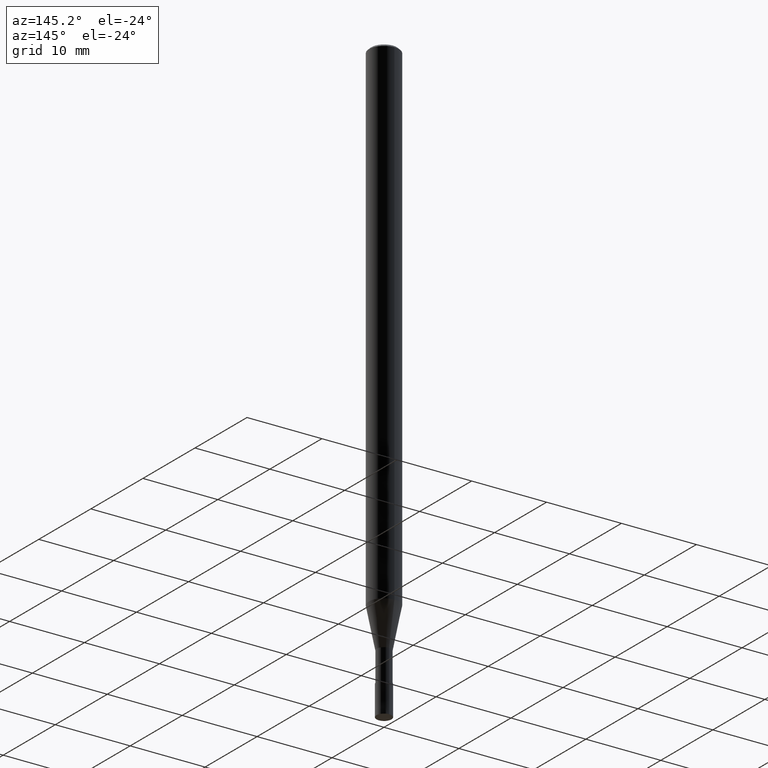
[diagram: clean part render]
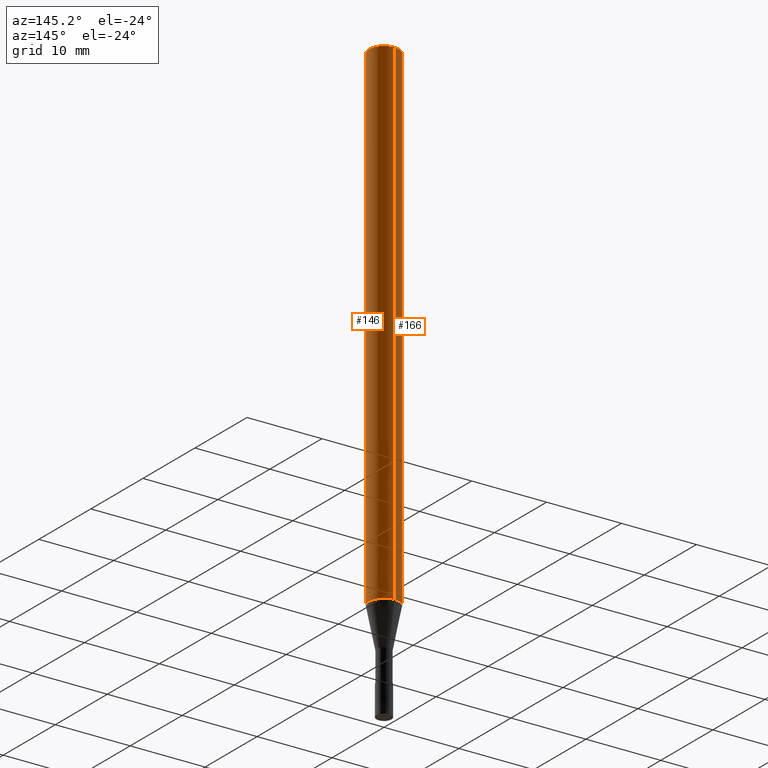
[diagram: same view with one multi-face feature highlighted, each face labeled with its STEP entity id]
A machine part, auxiliary view. The highlighted faces form ONE feature: a constant-radius fillet chain: 2 tangent blend faces with common blend radius 2 mm. The faces share edges in the B-rep.
Their STEP definitions:
[1] entity #166 (Cylinder):
#112=VERTEX_POINT('',#252);
#118=VERTEX_POINT('',#259);
#128=EDGE_CURVE('',#136,#168,#272,.T.);
#136=VERTEX_POINT('',#280);
#166=ADVANCED_FACE('',(#314),#315,.T.);
#168=VERTEX_POINT('',#317);
#194=EDGE_CURVE('',#112,#118,#347,.T.);
#200=EDGE_CURVE('',#136,#112,#353,.T.);
#206=EDGE_CURVE('',#118,#168,#359,.T.);
#252=CARTESIAN_POINT('',(2.44921270764475E-016,-2.0,-0.299999999999997));
#259=CARTESIAN_POINT('',(0.0,2.0,-0.299999999999997));
#272=CIRCLE('',#423,2.0);
#280=CARTESIAN_POINT('',(2.44921270764475E-016,-2.0,-66.598));
#314=FACE_OUTER_BOUND('',#476,.T.);
#315=CYLINDRICAL_SURFACE('',#477,2.0);
#317=CARTESIAN_POINT('',(0.0,2.0,-66.598));
#347=CIRCLE('',#516,2.0);
#353=LINE('',#525,#526);
#359=LINE('',#536,#537);
#423=AXIS2_PLACEMENT_3D('',#608,#609,#610);
#476=EDGE_LOOP('',(#659,#660,#661,#662));
#477=AXIS2_PLACEMENT_3D('',#663,#664,#665);
#516=AXIS2_PLACEMENT_3D('',#696,#697,#698);
#525=CARTESIAN_POINT('',(2.44921270764475E-016,-2.0,-33.449));
#526=VECTOR('',#705,1.0);
#536=CARTESIAN_POINT('',(-2.44921270764475E-016,2.0,-33.449));
#537=VECTOR('',#710,1.0);
#608=CARTESIAN_POINT('',(0.0,0.0,-66.598));
#609=DIRECTION('',(0.0,0.0,-1.0));
#610=DIRECTION('',(0.0,1.0,0.0));
#659=ORIENTED_EDGE('',*,*,#206,.T.);
#660=ORIENTED_EDGE('',*,*,#128,.F.);
#661=ORIENTED_EDGE('',*,*,#200,.T.);
#662=ORIENTED_EDGE('',*,*,#194,.T.);
#663=CARTESIAN_POINT('',(0.0,0.0,-33.449));
#664=DIRECTION('',(-0.0,-0.0,1.0));
#665=DIRECTION('',(0.0,1.0,0.0));
#696=CARTESIAN_POINT('',(0.0,0.0,-0.299999999999997));
#697=DIRECTION('',(0.0,0.0,-1.0));
#698=DIRECTION('',(0.0,1.0,0.0));
#705=DIRECTION('',(-0.0,-0.0,1.0));
#710=DIRECTION('',(0.0,0.0,-1.0));
[2] entity #146 (Cylinder):
#92=EDGE_CURVE('',#168,#136,#229,.T.);
#112=VERTEX_POINT('',#252);
#118=VERTEX_POINT('',#259);
#134=EDGE_CURVE('',#118,#112,#278,.T.);
#136=VERTEX_POINT('',#280);
#146=ADVANCED_FACE('',(#291),#292,.T.);
#168=VERTEX_POINT('',#317);
#200=EDGE_CURVE('',#136,#112,#353,.T.);
#206=EDGE_CURVE('',#118,#168,#359,.T.);
#229=CIRCLE('',#375,2.0);
#252=CARTESIAN_POINT('',(2.44921270764475E-016,-2.0,-0.299999999999997));
#259=CARTESIAN_POINT('',(0.0,2.0,-0.299999999999997));
#278=CIRCLE('',#432,2.0);
#280=CARTESIAN_POINT('',(2.44921270764475E-016,-2.0,-66.598));
#291=FACE_OUTER_BOUND('',#447,.T.);
#292=CYLINDRICAL_SURFACE('',#448,2.0);
#317=CARTESIAN_POINT('',(0.0,2.0,-66.598));
#353=LINE('',#525,#526);
#359=LINE('',#536,#537);
#375=AXIS2_PLACEMENT_3D('',#542,#543,#544);
#432=AXIS2_PLACEMENT_3D('',#612,#613,#614);
#447=EDGE_LOOP('',(#630,#631,#632,#633));
#448=AXIS2_PLACEMENT_3D('',#634,#635,#636);
#525=CARTESIAN_POINT('',(2.44921270764475E-016,-2.0,-33.449));
#526=VECTOR('',#705,1.0);
#536=CARTESIAN_POINT('',(-2.44921270764475E-016,2.0,-33.449));
#537=VECTOR('',#710,1.0);
#542=CARTESIAN_POINT('',(0.0,0.0,-66.598));
#543=DIRECTION('',(0.0,0.0,-1.0));
#544=DIRECTION('',(0.0,1.0,0.0));
#612=CARTESIAN_POINT('',(0.0,0.0,-0.299999999999997));
#613=DIRECTION('',(0.0,0.0,-1.0));
#614=DIRECTION('',(0.0,1.0,0.0));
#630=ORIENTED_EDGE('',*,*,#206,.F.);
#631=ORIENTED_EDGE('',*,*,#134,.T.);
#632=ORIENTED_EDGE('',*,*,#200,.F.);
#633=ORIENTED_EDGE('',*,*,#92,.F.);
#634=CARTESIAN_POINT('',(0.0,0.0,-33.449));
#635=DIRECTION('',(-0.0,-0.0,1.0));
#636=DIRECTION('',(0.0,1.0,0.0));
#705=DIRECTION('',(-0.0,-0.0,1.0));
#710=DIRECTION('',(0.0,0.0,-1.0));